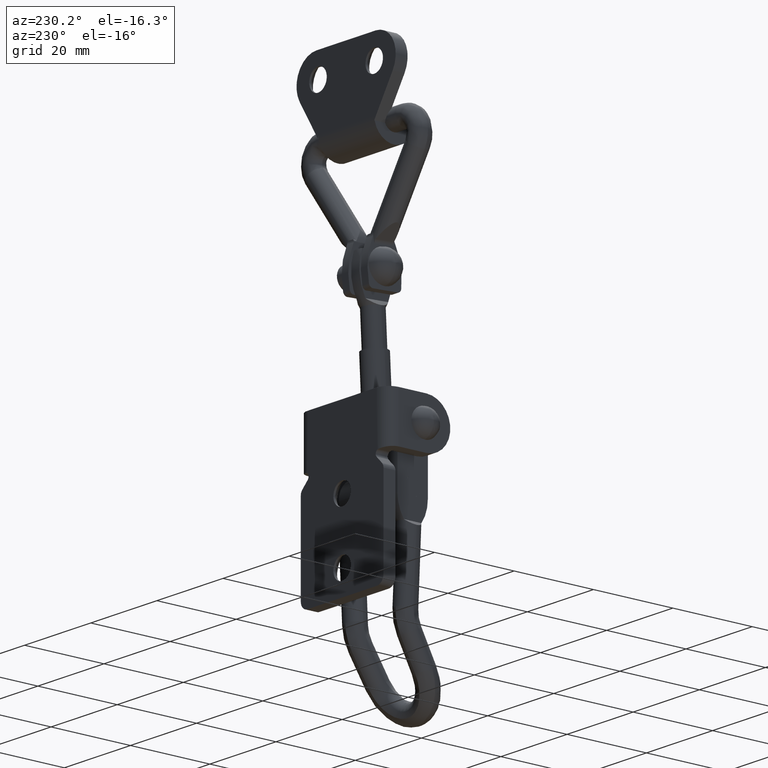
[diagram: clean part render]
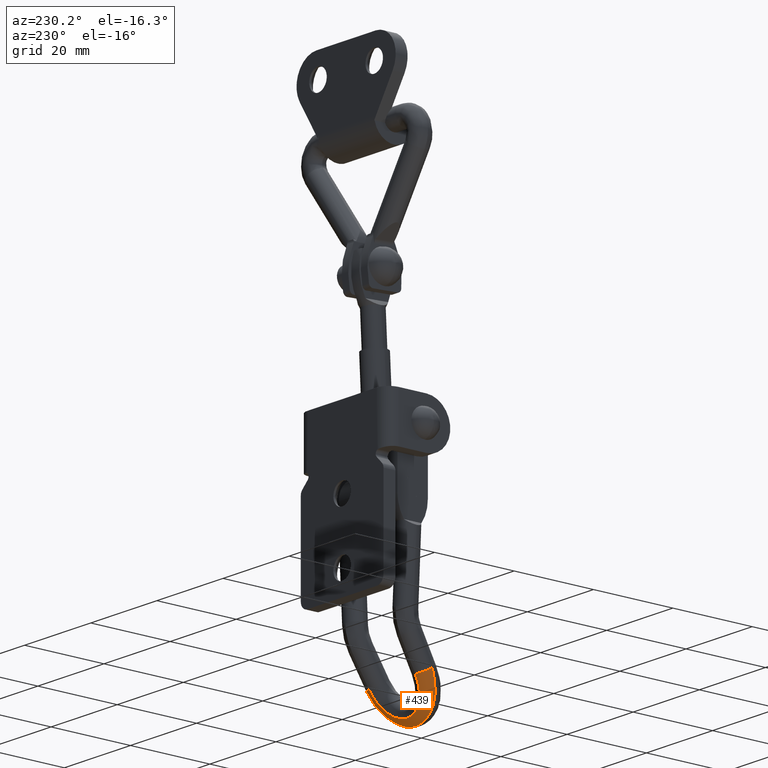
[diagram: same view with one face highlighted and labeled with its STEP entity id]
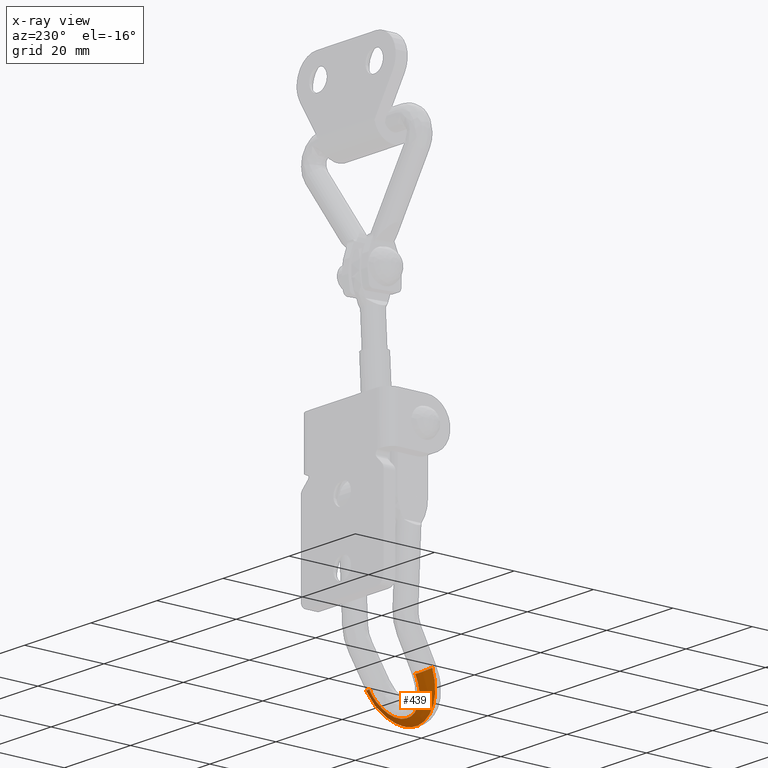
[diagram: x-ray of the same camera — body ghosted, the highlighted face saturated]
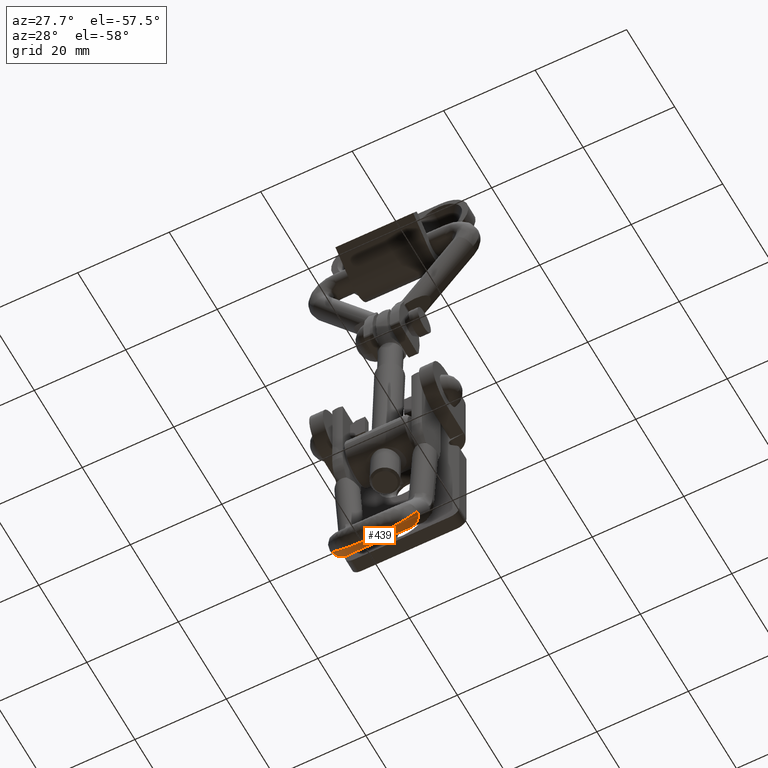
[diagram: same view with one face highlighted and labeled with its STEP entity id]
A machine part, auxiliary view. The second image highlights one B-rep face of the part: STEP entity #439.
The next image is the same camera in x-ray: the body ghosted, the highlighted face saturated — about 0% of this face is hidden behind the body in this view.
A second angle (auxiliary view) of the same face is appended — the face is thin or edge-on in the first view.
In plain terms, the highlighted face is a freeform B-spline surface patch.
Its self-contained STEP definition (entity closure, byte-faithful):
#439=ADVANCED_FACE('',(#2302),#2301,.T.);
#2301=( BOUNDED_SURFACE() B_SPLINE_SURFACE( 3,2,((#4100,#4101,#4102),(#4103,#4104,#4105),(#4106,#4107,#4108),(#4109,#4110,#4111),(#4112,#4113,#4114),(#4115,#4116,#4117),(#4118,#4119,#4120),(#4121,#4122,#4123),(#4124,#4125,#4126),(#4127,#4128,#4129),(#4130,#4131,#4132),(#4133,#4134,#4135),(#4136,#4137,#4138),(#4139,#4140,#4141),(#4142,#4143,#4144),(#4145,#4146,#4147),(#4148,#4149,#4150),(#4151,#4152,#4153)), .UNSPECIFIED.,.F.,.F.,.F.) B_SPLINE_SURFACE_WITH_KNOTS((4,2,2,2,2,2,2,2,4),(3,3),(4.76735688266E+00,5.14631398879E+00,5.52527109492E+00,5.90422820105E+00,6.28318530718E+00,6.66214241331E+00,7.04109951944E+00,7.42005662557E+00,7.79901373170E+00),(0.00000000000E+00,1.00000000000E+00), .UNSPECIFIED. ) GEOMETRIC_REPRESENTATION_ITEM() RATIONAL_B_SPLINE_SURFACE(((1.00000000000E+00,7.16753134944E-01,1.00000000000E+00),(1.00000000000E+00,7.38762059243E-01,1.00000000000E+00),(1.00000000000E+00,7.59470201477E-01,1.00000000000E+00),(1.00000000000E+00,7.96304615248E-01,1.00000000000E+00),(1.00000000000E+00,8.12423852297E-01,1.00000000000E+00),(1.00000000000E+00,8.38718593660E-01,1.00000000000E+00),(1.00000000000E+00,8.48897138704E-01,1.00000000000E+00),(1.00000000000E+00,8.62549898482E-01,1.00000000000E+00),(1.00000000000E+00,8.66025403772E-01,1.00000000000E+00),(1.00000000000E+00,8.66025403772E-01,1.00000000000E+00),(1.00000000000E+00,8.62549898482E-01,1.00000000000E+00),(1.00000000000E+00,8.48897138704E-01,1.00000000000E+00),(1.00000000000E+00,8.38718593660E-01,1.00000000000E+00),(1.00000000000E+00,8.12423852297E-01,1.00000000000E+00),(1.00000000000E+00,7.96304615248E-01,1.00000000000E+00),(1.00000000000E+00,7.59470201477E-01,1.00000000000E+00),(1.00000000000E+00,7.38762059243E-01,1.00000000000E+00),(1.00000000000E+00,7.16753134944E-01,1.00000000000E+00))) REPRESENTATION_ITEM('') SURFACE() );
#2302=FACE_OUTER_BOUND('',#4154,.T.);
#4100=CARTESIAN_POINT('',(-6.98942751646E+00,-3.01552288504E+00,-3.66345815806E+01));
#4101=CARTESIAN_POINT('',(-9.41891337855E+00,-3.07340733180E+00,-3.67348403834E+01));
#4102=CARTESIAN_POINT('',(-9.48565162948E+00,-5.18058639456E+00,-3.55219321452E+01));
#4103=CARTESIAN_POINT('',(-6.94083938529E+00,-3.52534972244E+00,-3.75176275661E+01));
#4104=CARTESIAN_POINT('',(-9.21069810261E+00,-3.69351796782E+00,-3.78089035114E+01));
#4105=CARTESIAN_POINT('',(-9.41971088683E+00,-5.69041097045E+00,-3.67203463810E+01));
#4106=CARTESIAN_POINT('',(-6.72302056841E+00,-4.02945424791E+00,-3.83907622167E+01));
#4107=CARTESIAN_POINT('',(-8.80960570840E+00,-4.30753211466E+00,-3.88724072104E+01));
#4108=CARTESIAN_POINT('',(-9.12409934285E+00,-6.19451775743E+00,-3.79053201513E+01));
#4109=CARTESIAN_POINT('',(-5.97949486360E+00,-4.95585287591E+00,-3.99953317086E+01));
#4110=CARTESIAN_POINT('',(-7.66851842970E+00,-5.40396905683E+00,-4.07714917017E+01));
#4111=CARTESIAN_POINT('',(-8.11502874345E+00,-7.12091638544E+00,-4.00829501761E+01));
#4112=CARTESIAN_POINT('',(-5.45404995130E+00,-5.37774514206E+00,-4.07260705490E+01));
#4113=CARTESIAN_POINT('',(-6.93693558392E+00,-5.89742671001E+00,-4.16261854285E+01));
#4114=CARTESIAN_POINT('',(-7.40192493391E+00,-7.54280865158E+00,-4.10746671737E+01));
#4115=CARTESIAN_POINT('',(-4.16966335856E+00,-6.07960571856E+00,-4.19417287274E+01));
#4116=CARTESIAN_POINT('',(-5.23529871314E+00,-6.70066662484E+00,-4.30174377718E+01));
#4117=CARTESIAN_POINT('',(-5.65882884376E+00,-8.24466922808E+00,-4.27244889874E+01));
#4118=CARTESIAN_POINT('',(-3.41116013048E+00,-6.35933443389E+00,-4.24262330748E+01));
#4119=CARTESIAN_POINT('',(-4.26138793478E+00,-7.02076528517E+00,-4.35718649150E+01));
#4120=CARTESIAN_POINT('',(-4.62943160566E+00,-8.52439794341E+00,-4.33820306016E+01));
#4121=CARTESIAN_POINT('',(-1.76816463860E+00,-6.73706429243E+00,-4.30804803814E+01));
#4122=CARTESIAN_POINT('',(-2.19744469832E+00,-7.44569488003E+00,-4.43078645630E+01));
#4123=CARTESIAN_POINT('',(-2.39965200953E+00,-8.90212780196E+00,-4.42699376606E+01));
#4124=CARTESIAN_POINT('',(-8.84233244628E-01,-6.83493648980E+00,-4.32499999999E+01));
#4125=CARTESIAN_POINT('',(-1.09476497026E+00,-7.55662432627E+00,-4.45000000000E+01));
#4126=CARTESIAN_POINT('',(-1.20003083200E+00,-8.99999999932E+00,-4.45000000000E+01));
#4127=CARTESIAN_POINT('',(8.84233244628E-01,-6.83493648980E+00,-4.32499999999E+01));
#4128=CARTESIAN_POINT('',(1.09476497026E+00,-7.55662432627E+00,-4.45000000000E+01));
#4129=CARTESIAN_POINT('',(1.20003083200E+00,-8.99999999932E+00,-4.45000000000E+01));
#4130=CARTESIAN_POINT('',(1.76816463860E+00,-6.73706429243E+00,-4.30804803814E+01));
#4131=CARTESIAN_POINT('',(2.19744469832E+00,-7.44569488003E+00,-4.43078645630E+01));
#4132=CARTESIAN_POINT('',(2.39965200953E+00,-8.90212780196E+00,-4.42699376606E+01));
#4133=CARTESIAN_POINT('',(3.41116013048E+00,-6.35933443389E+00,-4.24262330748E+01));
#4134=CARTESIAN_POINT('',(4.26138793478E+00,-7.02076528517E+00,-4.35718649150E+01));
#4135=CARTESIAN_POINT('',(4.62943160566E+00,-8.52439794341E+00,-4.33820306016E+01));
#4136=CARTESIAN_POINT('',(4.16966335856E+00,-6.07960571856E+00,-4.19417287274E+01));
#4137=CARTESIAN_POINT('',(5.23529871314E+00,-6.70066662484E+00,-4.30174377718E+01));
#4138=CARTESIAN_POINT('',(5.65882884375E+00,-8.24466922808E+00,-4.27244889874E+01));
#4139=CARTESIAN_POINT('',(5.45404995130E+00,-5.37774514206E+00,-4.07260705490E+01));
#4140=CARTESIAN_POINT('',(6.93693558392E+00,-5.89742671001E+00,-4.16261854285E+01));
#4141=CARTESIAN_POINT('',(7.40192493392E+00,-7.54280865158E+00,-4.10746671737E+01));
#4142=CARTESIAN_POINT('',(5.97949486360E+00,-4.95585287591E+00,-3.99953317086E+01));
#4143=CARTESIAN_POINT('',(7.66851842970E+00,-5.40396905683E+00,-4.07714917017E+01));
#4144=CARTESIAN_POINT('',(8.11502874345E+00,-7.12091638544E+00,-4.00829501761E+01));
#4145=CARTESIAN_POINT('',(6.72302056841E+00,-4.02945424791E+00,-3.83907622167E+01));
#4146=CARTESIAN_POINT('',(8.80960570840E+00,-4.30753211466E+00,-3.88724072104E+01));
#4147=CARTESIAN_POINT('',(9.12409934285E+00,-6.19451775743E+00,-3.79053201513E+01));
#4148=CARTESIAN_POINT('',(6.94083938529E+00,-3.52534972244E+00,-3.75176275661E+01));
#4149=CARTESIAN_POINT('',(9.21069810260E+00,-3.69351796782E+00,-3.78089035114E+01));
#4150=CARTESIAN_POINT('',(9.41971088683E+00,-5.69041097046E+00,-3.67203463810E+01));
#4151=CARTESIAN_POINT('',(6.98942751646E+00,-3.01552288504E+00,-3.66345815806E+01));
#4152=CARTESIAN_POINT('',(9.41891337855E+00,-3.07340733180E+00,-3.67348403834E+01));
#4153=CARTESIAN_POINT('',(9.48565162948E+00,-5.18058639456E+00,-3.55219321452E+01));
#4154=EDGE_LOOP('',(#5407,#5408,#5409,#5410));
#5407=ORIENTED_EDGE('',*,*,#6055,.T.);
#5408=ORIENTED_EDGE('',*,*,#6071,.F.);
#5409=ORIENTED_EDGE('',*,*,#6057,.F.);
#5410=ORIENTED_EDGE('',*,*,#6072,.T.);
#6055=EDGE_CURVE('',#9098,#9091,#9099,.T.);
#6057=EDGE_CURVE('',#9111,#9112,#9113,.T.);
#6071=EDGE_CURVE('',#9112,#9091,#9208,.T.);
#6072=EDGE_CURVE('',#9111,#9098,#9214,.T.);
#9091=VERTEX_POINT('',#11991);
#9098=VERTEX_POINT('',#11996);
#9099=(BOUNDED_CURVE() B_SPLINE_CURVE(2,(#11997,#11998,#11999,#12000,#12001),.UNSPECIFIED.,.F.,.F.) B_SPLINE_CURVE_WITH_KNOTS((3,2,3),(-1.51582842450E+00,-6.43929354283E-15,1.51582842450E+00),.UNSPECIFIED.) CURVE() GEOMETRIC_REPRESENTATION_ITEM() RATIONAL_B_SPLINE_CURVE((1.00000000000E+00,7.26271376906E-01,1.00000000000E+00,7.26271376906E-01,1.00000000000E+00)) REPRESENTATION_ITEM('') );
#9111=VERTEX_POINT('',#12006);
#9112=VERTEX_POINT('',#12007);
#9113=(BOUNDED_CURVE() B_SPLINE_CURVE(2,(#12008,#12009,#12010,#12011,#12012),.UNSPECIFIED.,.F.,.F.) B_SPLINE_CURVE_WITH_KNOTS((3,2,3),(-1.51582842451E+00,-0.00000000000E+00,1.51582842451E+00),.UNSPECIFIED.) CURVE() GEOMETRIC_REPRESENTATION_ITEM() RATIONAL_B_SPLINE_CURVE((1.00000000000E+00,7.26271376902E-01,1.00000000000E+00,7.26271376902E-01,1.00000000000E+00)) REPRESENTATION_ITEM('') );
#9208=CIRCLE('',#12088,2.50000000000E+00);
#9214=CIRCLE('',#12092,2.50000000000E+00);
#11991=CARTESIAN_POINT('',(6.98942751645E+00,-3.01552288509E+00,-3.66345815807E+01));
#11996=CARTESIAN_POINT('',(-6.98942751645E+00,-3.01552288509E+00,-3.66345815807E+01));
#11997=CARTESIAN_POINT('',(-6.98942751645E+00,-3.01552288509E+00,-3.66345815807E+01));
#11998=CARTESIAN_POINT('',(-6.62542516187E+00,-6.83493648980E+00,-4.32499999999E+01));
#11999=CARTESIAN_POINT('',(1.16173737297E-12,-6.83493648980E+00,-4.32499999999E+01));
#12000=CARTESIAN_POINT('',(6.62542516187E+00,-6.83493648980E+00,-4.32499999999E+01));
#12001=CARTESIAN_POINT('',(6.98942751645E+00,-3.01552288509E+00,-3.66345815807E+01));
#12006=CARTESIAN_POINT('',(-9.48565162947E+00,-5.18058639435E+00,-3.55219321453E+01));
#12007=CARTESIAN_POINT('',(9.48565162947E+00,-5.18058639435E+00,-3.55219321453E+01));
#12008=CARTESIAN_POINT('',(-9.48565162947E+00,-5.18058639457E+00,-3.55219321452E+01));
#12009=CARTESIAN_POINT('',(-8.99164843406E+00,-8.99999999932E+00,-4.45000000000E+01));
#12010=CARTESIAN_POINT('',(0.00000000000E+00,-8.99999999932E+00,-4.45000000000E+01));
#12011=CARTESIAN_POINT('',(8.99164843406E+00,-8.99999999932E+00,-4.45000000000E+01));
#12012=CARTESIAN_POINT('',(9.48565162947E+00,-5.18058639457E+00,-3.55219321452E+01));
#12085=CARTESIAN_POINT('',(6.98942751645E+00,-5.18058639461E+00,-3.53845815808E+01));
#12086=DIRECTION('',(4.75975933859E-02,4.99433296080E-01,8.65043843901E-01));
#12087=DIRECTION('',(2.11375776375E-17,-8.66025403809E-01,4.99999999958E-01));
#12088=AXIS2_PLACEMENT_3D('',#12085,#12086,#12087);
#12089=CARTESIAN_POINT('',(-6.98942751645E+00,-5.18058639461E+00,-3.53845815808E+01));
#12090=DIRECTION('',(4.75975933859E-02,-4.99433296080E-01,-8.65043843901E-01));
#12091=DIRECTION('',(-2.11375776375E-17,-8.66025403809E-01,4.99999999958E-01));
#12092=AXIS2_PLACEMENT_3D('',#12089,#12090,#12091);